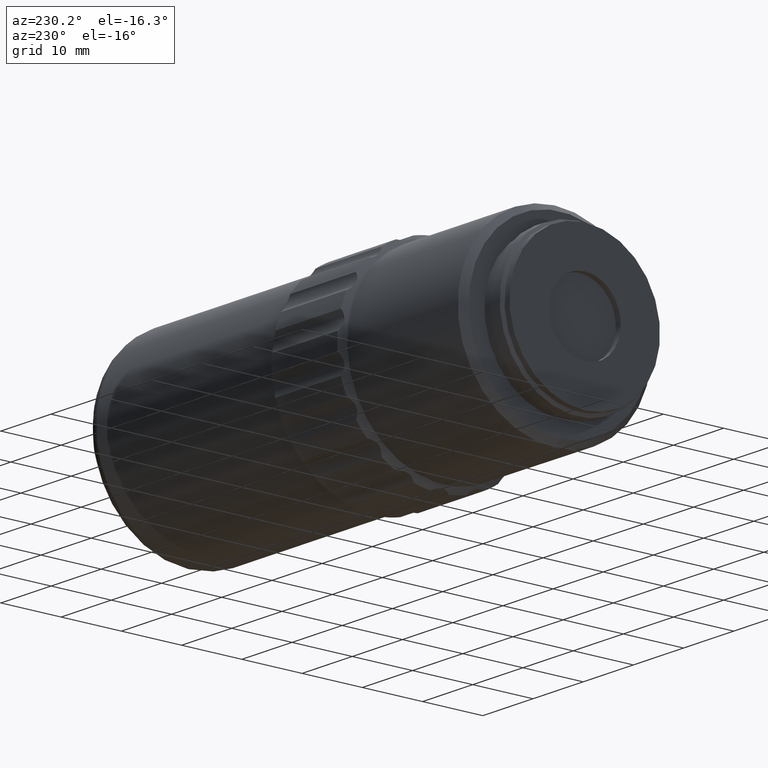
[diagram: clean part render]
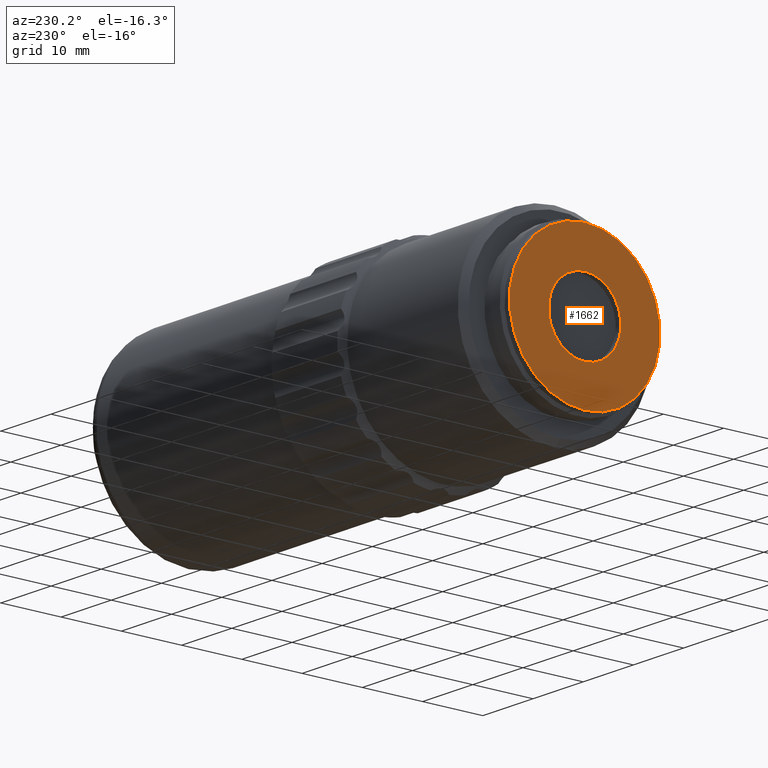
[diagram: same view with one face highlighted and labeled with its STEP entity id]
A machine part, auxiliary view. The second image highlights one B-rep face of the part: STEP entity #1662.
In plain terms, the highlighted planar face has unit normal (-1, 0, 0).
Its self-contained STEP definition (entity closure, byte-faithful):
#24 = EDGE_LOOP ( 'NONE', ( #1610 ) ) ;
#66 = DIRECTION ( 'NONE',  ( 1.000000000000000000, -0.000000000000000000, -0.000000000000000000 ) ) ;
#371 = DIRECTION ( 'NONE',  ( 0.000000000000000000, 0.000000000000000000, 1.000000000000000000 ) ) ;
#399 = DIRECTION ( 'NONE',  ( 1.000000000000000000, -0.000000000000000000, -0.000000000000000000 ) ) ;
#416 = AXIS2_PLACEMENT_3D ( 'NONE', #1854, #1862, #1556 ) ;
#446 = CIRCLE ( 'NONE', #1607, 6.000000000000000000 ) ;
#550 = PLANE ( 'NONE',  #416 ) ;
#706 = DIRECTION ( 'NONE',  ( 0.000000000000000000, 0.000000000000000000, 1.000000000000000000 ) ) ;
#728 = AXIS2_PLACEMENT_3D ( 'NONE', #1026, #66, #706 ) ;
#784 = VERTEX_POINT ( 'NONE', #2087 ) ;
#853 = ORIENTED_EDGE ( 'NONE', *, *, #901, .T. ) ;
#891 = FACE_OUTER_BOUND ( 'NONE', #24, .T. ) ;
#901 = EDGE_CURVE ( 'NONE', #784, #784, #446, .T. ) ;
#1026 = CARTESIAN_POINT ( 'NONE',  ( -9.553141965121202617, 46.02096199999999726, 0.000000000000000000 ) ) ;
#1037 = CARTESIAN_POINT ( 'NONE',  ( -9.553141965121202617, 46.02096199999999726, 0.000000000000000000 ) ) ;
#1101 = CIRCLE ( 'NONE', #728, 12.50000000000000000 ) ;
#1267 = VERTEX_POINT ( 'NONE', #1916 ) ;
#1556 = DIRECTION ( 'NONE',  ( 0.000000000000000000, 0.000000000000000000, 1.000000000000000000 ) ) ;
#1565 = FACE_BOUND ( 'NONE', #2083, .T. ) ;
#1607 = AXIS2_PLACEMENT_3D ( 'NONE', #1037, #399, #371 ) ;
#1610 = ORIENTED_EDGE ( 'NONE', *, *, #1619, .F. ) ;
#1619 = EDGE_CURVE ( 'NONE', #1267, #1267, #1101, .T. ) ;
#1662 = ADVANCED_FACE ( 'NONE', ( #891, #1565 ), #550, .T. ) ;
#1854 = CARTESIAN_POINT ( 'NONE',  ( -9.553141965121202617, 57.87096199999999868, 0.000000000000000000 ) ) ;
#1862 = DIRECTION ( 'NONE',  ( -1.000000000000000000, 0.000000000000000000, 0.000000000000000000 ) ) ;
#1916 = CARTESIAN_POINT ( 'NONE',  ( -9.553141965121202617, 46.02096199999999726, 12.50000000000000000 ) ) ;
#2083 = EDGE_LOOP ( 'NONE', ( #853 ) ) ;
#2087 = CARTESIAN_POINT ( 'NONE',  ( -9.553141965121202617, 46.02096199999999726, 6.000000000000000000 ) ) ;